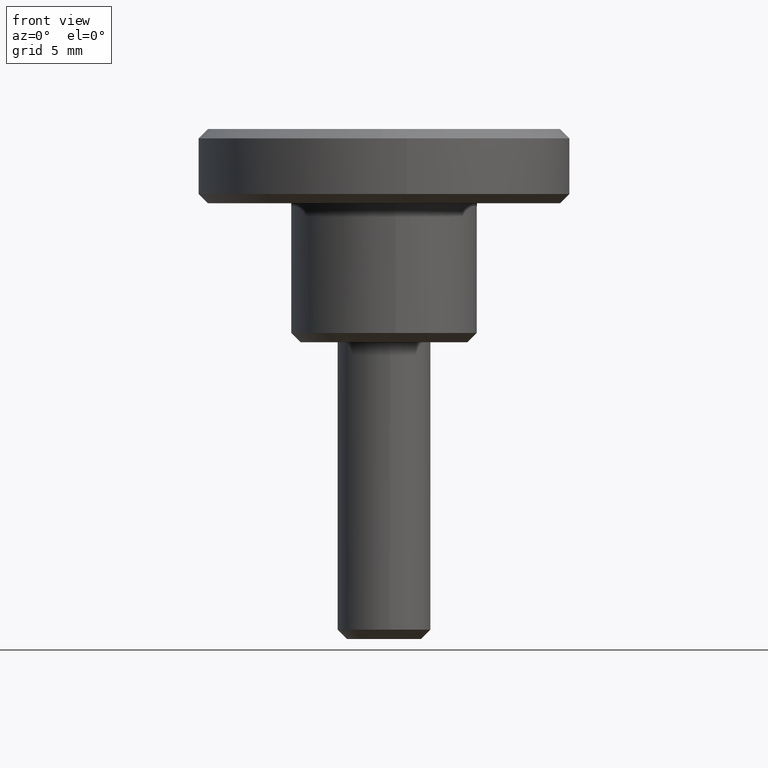
[diagram: clean part render]
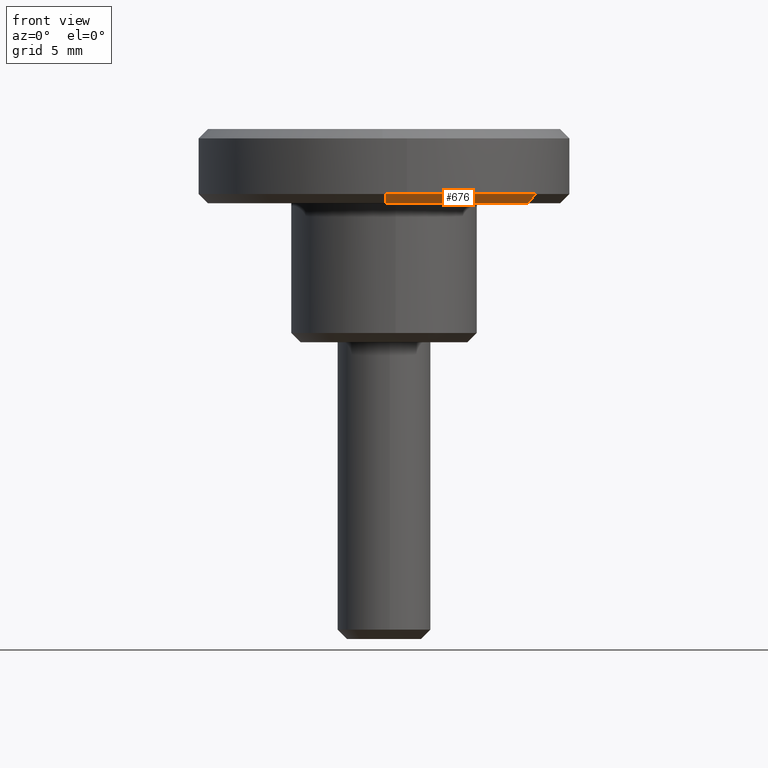
[diagram: same view with one face highlighted and labeled with its STEP entity id]
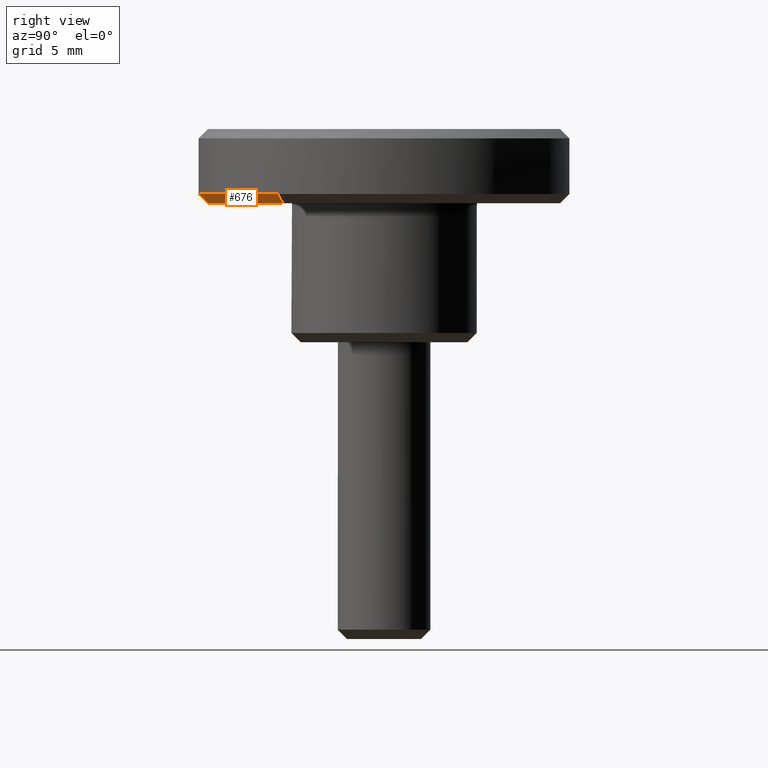
[diagram: same view with one face highlighted and labeled with its STEP entity id]
A machine part, front view. The second image highlights one B-rep face of the part: STEP entity #676.
A second angle (right view) of the same face is appended — the face is thin or edge-on in the first view.
In plain terms, the highlighted face is a freeform B-spline surface patch.
Its self-contained STEP definition (entity closure, byte-faithful):
#489=CARTESIAN_POINT('',(7.779228070751314,-5.452853438635381,7.500000000000211));
#490=VERTEX_POINT('',#489);
#521=CARTESIAN_POINT('',(0.082902087263308,-9.499638269113314,7.500000000003994));
#522=VERTEX_POINT('',#521);
#538=CARTESIAN_POINT('',(0.087265354983874,-9.999619230641745,8.000000000000121));
#539=VERTEX_POINT('',#538);
#540=CARTESIAN_POINT('',(0.082902087263308,-9.499638269113314,7.500000000003994));
#541=CARTESIAN_POINT('',(0.087265354983874,-9.999619230641745,8.000000000000121));
#542=QUASI_UNIFORM_CURVE('',1,(#540,#541),.UNSPECIFIED.,.F.,.U.);
#543=EDGE_CURVE('',#522,#539,#542,.T.);
#594=CARTESIAN_POINT('',(8.188661127107476,-5.739845724878030,8.000000000000172));
#595=VERTEX_POINT('',#594);
#609=CARTESIAN_POINT('',(7.779228070751314,-5.452853438635381,7.500000000000211));
#610=CARTESIAN_POINT('',(8.188661127107476,-5.739845724878030,8.000000000000172));
#611=QUASI_UNIFORM_CURVE('',1,(#609,#610),.UNSPECIFIED.,.F.,.U.);
#612=EDGE_CURVE('',#490,#595,#611,.T.);
#617=CARTESIAN_POINT('',(0.082793005540823,-9.487138745071432,7.487500000000109));
#618=CARTESIAN_POINT('',(4.966000022812007,-9.444523643036803,7.487500000000109));
#619=CARTESIAN_POINT('',(7.768992244344123,-5.445678631476790,7.487500000000110));
#620=CARTESIAN_POINT('',(0.087377163719812,-10.012431242781030,8.012812500000122));
#621=CARTESIAN_POINT('',(5.240962013534871,-9.967456589148242,8.012812500000123));
#622=CARTESIAN_POINT('',(8.199152849177494,-5.747199902211691,8.012812500000123));
#630=(BOUNDED_SURFACE()B_SPLINE_SURFACE(2,1,((#617,#620),(#618,#621),(#619,#622)),.UNSPECIFIED.,.F.,.F.,.U.)B_SPLINE_SURFACE_WITH_KNOTS((3,3),(2,2),(0.0,9.886015678606007),(0.0,1.0),.UNSPECIFIED.)GEOMETRIC_REPRESENTATION_ITEM()RATIONAL_B_SPLINE_SURFACE(((1.0,1.0),(0.824264068711928,0.824264068711928),(0.859411254969543,0.859411254969543)))REPRESENTATION_ITEM('')SURFACE());
#631=CARTESIAN_POINT('',(7.779228070751313,-5.452853438635380,7.500000000000211));
#632=CARTESIAN_POINT('',(4.972542842358388,-9.456967020665786,7.500000000000111));
#633=CARTESIAN_POINT('',(0.082902087263308,-9.499638269113314,7.500000000003994));
#641=(BOUNDED_CURVE()B_SPLINE_CURVE(2,(#631,#632,#633),.UNSPECIFIED.,.F.,.U.)B_SPLINE_CURVE_WITH_KNOTS((3,3),(0.098673726202969,0.248460105663948),.UNSPECIFIED.)CURVE()GEOMETRIC_REPRESENTATION_ITEM()RATIONAL_B_SPLINE_CURVE((0.860049271925824,0.823090203820994,0.996414028097941))REPRESENTATION_ITEM(''));
#642=EDGE_CURVE('',#490,#522,#641,.T.);
#643=ORIENTED_EDGE('',*,*,#642,.F.);
#644=ORIENTED_EDGE('',*,*,#612,.T.);
#645=CARTESIAN_POINT('',(1.241271863740393,-9.922663158659514,8.000000000000119));
#646=VERTEX_POINT('',#645);
#647=CARTESIAN_POINT('',(1.241271863740394,-9.922663158659514,8.000000000000121));
#648=CARTESIAN_POINT('',(5.642648680511572,-9.372074559914664,8.000000000000119));
#649=CARTESIAN_POINT('',(8.188661127107476,-5.739845724878030,8.000000000000172));
#657=(BOUNDED_CURVE()B_SPLINE_CURVE(2,(#647,#648,#649),.UNSPECIFIED.,.F.,.U.)B_SPLINE_CURVE_WITH_KNOTS((3,3),(0.271473790333043,0.401326273797079),.UNSPECIFIED.)CURVE()GEOMETRIC_REPRESENTATION_ITEM()RATIONAL_B_SPLINE_CURVE((0.954005699316995,0.828008796702347,0.860049271925848))REPRESENTATION_ITEM(''));
#658=EDGE_CURVE('',#646,#595,#657,.T.);
#659=ORIENTED_EDGE('',*,*,#658,.F.);
#660=CARTESIAN_POINT('',(0.087265354983874,-9.999619230641745,8.000000000000121));
#661=CARTESIAN_POINT('',(0.666497465630396,-9.994564348591922,8.000000000000117));
#662=CARTESIAN_POINT('',(1.241271863740394,-9.922663158659514,8.000000000000121));
#670=(BOUNDED_CURVE()B_SPLINE_CURVE(2,(#660,#661,#662),.UNSPECIFIED.,.F.,.U.)B_SPLINE_CURVE_WITH_KNOTS((3,3),(0.251539894334992,0.271473790333043),.UNSPECIFIED.)CURVE()GEOMETRIC_REPRESENTATION_ITEM()RATIONAL_B_SPLINE_CURVE((0.996414028100395,0.973347717935318,0.954005699316995))REPRESENTATION_ITEM(''));
#671=EDGE_CURVE('',#539,#646,#670,.T.);
#672=ORIENTED_EDGE('',*,*,#671,.F.);
#673=ORIENTED_EDGE('',*,*,#543,.F.);
#674=EDGE_LOOP('',(#643,#644,#659,#672,#673));
#675=FACE_OUTER_BOUND('',#674,.T.);
#676=ADVANCED_FACE('',(#675),#630,.T.);